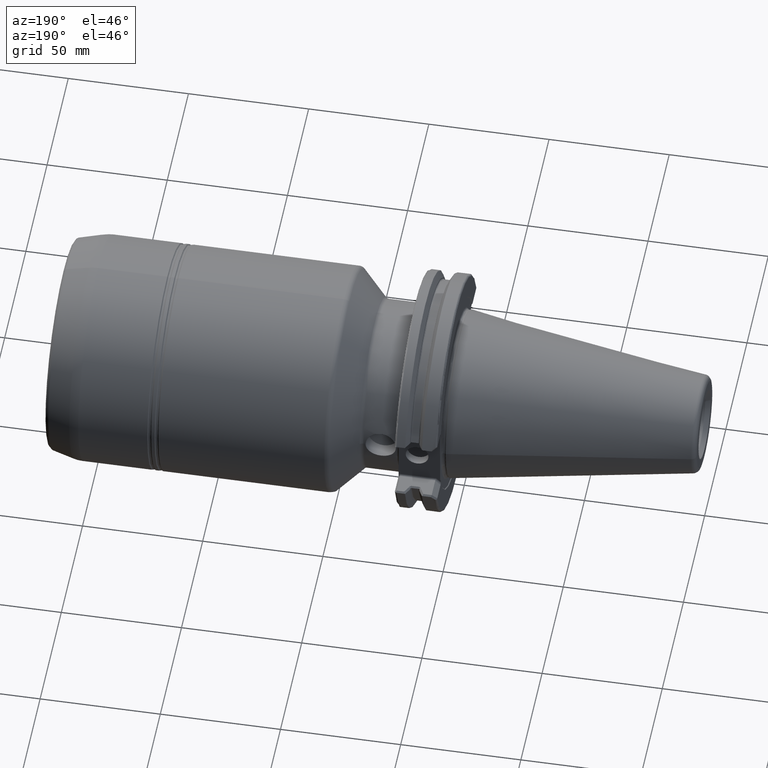
[diagram: clean part render]
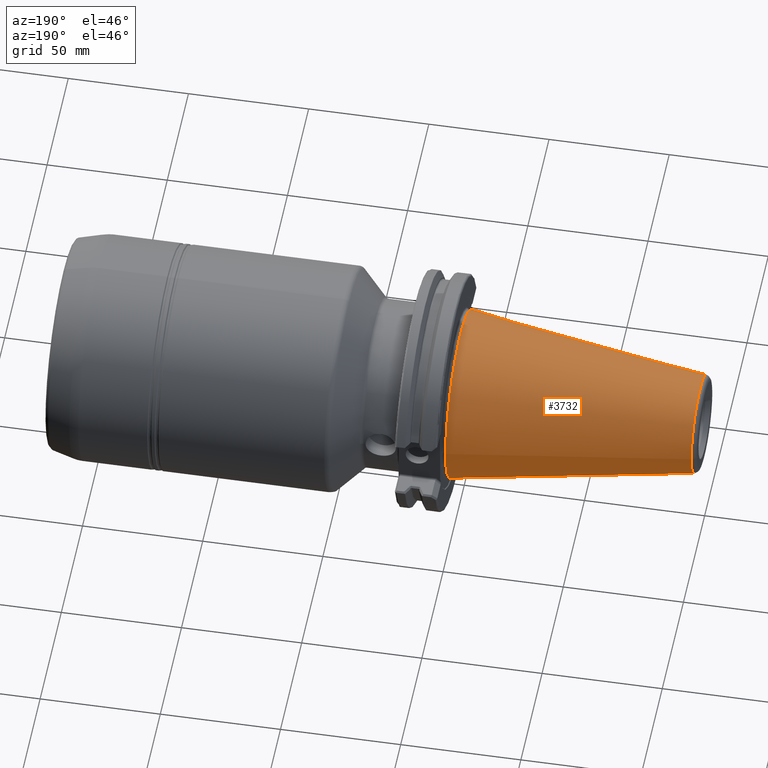
[diagram: same view with one face highlighted and labeled with its STEP entity id]
A machine part, auxiliary view. The second image highlights one B-rep face of the part: STEP entity #3732.
In plain terms, the highlighted conical surface has half-angle 8.297 deg.
Its self-contained STEP definition (entity closure, byte-faithful):
#431 = FACE_OUTER_BOUND ( 'NONE', #3410, .T. ) ;
#483 = EDGE_LOOP ( 'NONE', ( #2338 ) ) ;
#659 = DIRECTION ( 'NONE',  ( 0.0000000000000000000, 1.000000000000000000, 0.0000000000000000000 ) ) ;
#714 = AXIS2_PLACEMENT_3D ( 'NONE', #3039, #1807, #3338 ) ;
#1074 = CIRCLE ( 'NONE', #3473, 20.39521338321184600 ) ;
#1149 = EDGE_CURVE ( 'NONE', #1408, #1408, #3211, .T. ) ;
#1272 = DIRECTION ( 'NONE',  ( 1.000000000000000000, 5.673509567454082000E-020, -0.0000000000000000000 ) ) ;
#1334 = EDGE_CURVE ( 'NONE', #2111, #2111, #1074, .T. ) ;
#1358 = CONICAL_SURFACE ( 'NONE', #2275, 34.92499999999999000, 0.1448138077623173400 ) ;
#1408 = VERTEX_POINT ( 'NONE', #2045 ) ;
#1616 = DIRECTION ( 'NONE',  ( 0.0000000000000000000, 1.000000000000000000, 0.0000000000000000000 ) ) ;
#1724 = CARTESIAN_POINT ( 'NONE',  ( 1.968091165557184200, 20.39521338321184600, 0.0000000000000000000 ) ) ;
#1807 = DIRECTION ( 'NONE',  ( 1.000000000000000000, 5.673509567454082000E-020, -0.0000000000000000000 ) ) ;
#2026 = FACE_BOUND ( 'NONE', #483, .T. ) ;
#2045 = CARTESIAN_POINT ( 'NONE',  ( 101.5999999999999900, 34.92499999999999000, 0.0000000000000000000 ) ) ;
#2111 = VERTEX_POINT ( 'NONE', #1724 ) ;
#2170 = CARTESIAN_POINT ( 'NONE',  ( 1.968091165557184200, 7.262859938846823100E-019, 0.0000000000000000000 ) ) ;
#2275 = AXIS2_PLACEMENT_3D ( 'NONE', #3632, #3621, #659 ) ;
#2338 = ORIENTED_EDGE ( 'NONE', *, *, #1334, .T. ) ;
#3039 = CARTESIAN_POINT ( 'NONE',  ( 101.5999999999999900, 6.378911873843924500E-018, 0.0000000000000000000 ) ) ;
#3125 = ORIENTED_EDGE ( 'NONE', *, *, #1149, .F. ) ;
#3211 = CIRCLE ( 'NONE', #714, 34.92499999999999000 ) ;
#3338 = DIRECTION ( 'NONE',  ( 0.0000000000000000000, 1.000000000000000000, 0.0000000000000000000 ) ) ;
#3410 = EDGE_LOOP ( 'NONE', ( #3125 ) ) ;
#3473 = AXIS2_PLACEMENT_3D ( 'NONE', #2170, #1272, #1616 ) ;
#3621 = DIRECTION ( 'NONE',  ( 1.000000000000000000, 5.673509567454082000E-020, -0.0000000000000000000 ) ) ;
#3632 = CARTESIAN_POINT ( 'NONE',  ( 101.5999999999999900, 6.378911873843924500E-018, 0.0000000000000000000 ) ) ;
#3732 = ADVANCED_FACE ( 'NONE', ( #2026, #431 ), #1358, .T. ) ;